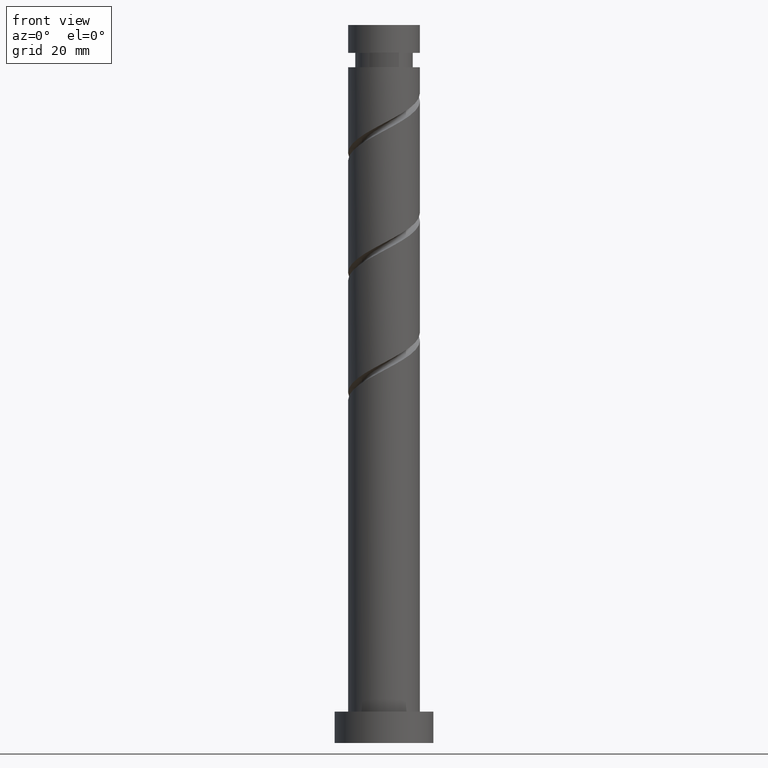
[diagram: clean part render]
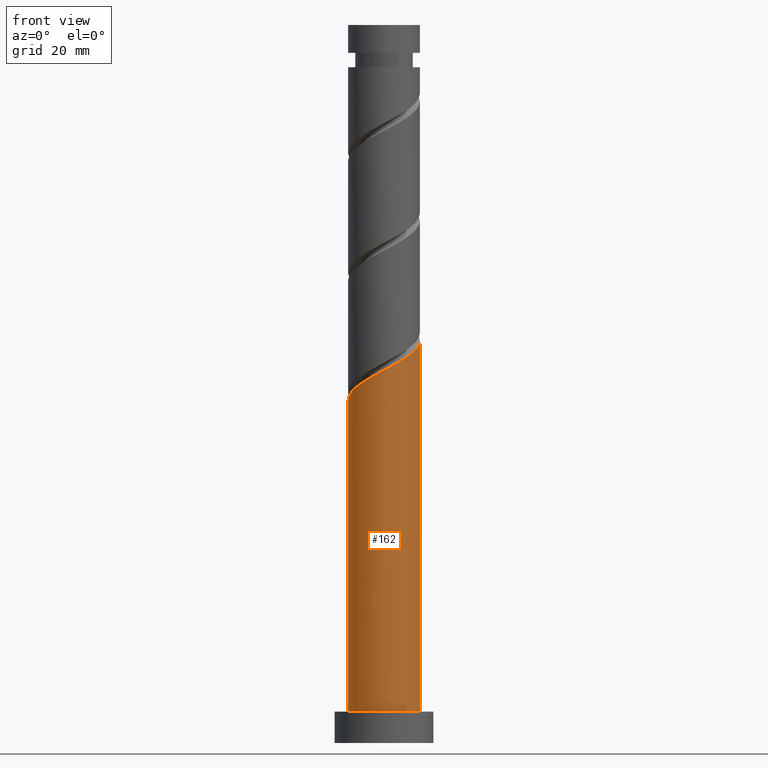
[diagram: same view with one face highlighted and labeled with its STEP entity id]
A machine part, front view. The second image highlights one B-rep face of the part: STEP entity #162.
In plain terms, the highlighted cylindrical surface (edge-blend (fillet) strip) has radius 8 mm, axis along (-0, -0, -1).
Its self-contained STEP definition (entity closure, byte-faithful):
#92 = CARTESIAN_POINT ( 'NONE',  ( -7.146654988808340825, -3.774697753686220736, 78.46827507435672544 ) ) ;
#116 = CARTESIAN_POINT ( 'NONE',  ( 8.000000000000000000, 9.797174393178825657E-16, 7.000000000000000000 ) ) ;
#120 = DIRECTION ( 'NONE',  ( 0.000000000000000000, 0.000000000000000000, 1.000000000000000000 ) ) ;
#127 = LINE ( 'NONE', #1279, #1455 ) ;
#153 = DIRECTION ( 'NONE',  ( -0.000000000000000000, -0.000000000000000000, -1.000000000000000000 ) ) ;
#162 = ADVANCED_FACE ( 'NONE', ( #174 ), #305, .T. ) ;
#174 = FACE_OUTER_BOUND ( 'NONE', #470, .T. ) ;
#208 = CARTESIAN_POINT ( 'NONE',  ( -7.533637742433276330, -2.691524171503020924, 77.86221446829610215 ) ) ;
#213 = ORIENTED_EDGE ( 'NONE', *, *, #1110, .F. ) ;
#219 = CARTESIAN_POINT ( 'NONE',  ( -3.971393078059877180, -7.039251215880920398, 80.89251749859914753 ) ) ;
#228 = CARTESIAN_POINT ( 'NONE',  ( 7.532789951889100166, -2.929180124448060418, 88.16524477132642801 ) ) ;
#279 = VERTEX_POINT ( 'NONE', #116 ) ;
#280 = VERTEX_POINT ( 'NONE', #1018 ) ;
#305 = CYLINDRICAL_SURFACE ( 'NONE', #379, 8.000000000000000000 ) ;
#336 = CARTESIAN_POINT ( 'NONE',  ( -7.986762466259771820, -0.4600275073779067081, 76.65009325617486979 ) ) ;
#362 = CARTESIAN_POINT ( 'NONE',  ( 6.967601788265361584, -3.930970022801182573, 87.55918416526579051 ) ) ;
#379 = AXIS2_PLACEMENT_3D ( 'NONE', #1351, #1223, #582 ) ;
#455 = CIRCLE ( 'NONE', #648, 8.000000000000000000 ) ;
#464 = CARTESIAN_POINT ( 'NONE',  ( -7.920620496058218052, -1.608350589319821777, 77.25615386223552150 ) ) ;
#470 = EDGE_LOOP ( 'NONE', ( #1131, #213, #1143, #1660 ) ) ;
#482 = CARTESIAN_POINT ( 'NONE',  ( 3.736276773218410341, -7.073912345647833000, 85.13494174102336842 ) ) ;
#491 = CARTESIAN_POINT ( 'NONE',  ( 8.000000000000012434, 4.935750832153824202E-15, 89.74003271626796163 ) ) ;
#582 = DIRECTION ( 'NONE',  ( -1.000000000000000000, 0.000000000000000000, 0.000000000000000000 ) ) ;
#600 = CARTESIAN_POINT ( 'NONE',  ( -8.000000000000014211, -0.2302042121905828742, 76.52879738765281559 ) ) ;
#610 = CARTESIAN_POINT ( 'NONE',  ( 4.753351822145639005, -6.536716845301444145, 85.74100234708397750 ) ) ;
#648 = AXIS2_PLACEMENT_3D ( 'NONE', #1286, #120, #791 ) ;
#727 = CARTESIAN_POINT ( 'NONE',  ( 6.402413624641629220, -4.932759921154301175, 86.95312355920519565 ) ) ;
#738 = CARTESIAN_POINT ( 'NONE',  ( 1.591979899370593365, -7.840000000000012292, 83.92282052890216448 ) ) ;
#747 = CARTESIAN_POINT ( 'NONE',  ( 8.000000000000014211, -0.9162314190809843772, 89.25407276329661954 ) ) ;
#781 = DIRECTION ( 'NONE',  ( -0.000000000000000000, -0.000000000000000000, -1.000000000000000000 ) ) ;
#791 = DIRECTION ( 'NONE',  ( 1.000000000000000000, 0.000000000000000000, 0.000000000000000000 ) ) ;
#798 = CARTESIAN_POINT ( 'NONE',  ( -8.000000000000000000, 0.000000000000000000, 160.0000000000000000 ) ) ;
#852 = CARTESIAN_POINT ( 'NONE',  ( -6.470182492983659550, -4.704969554363554352, 79.07433568041734873 ) ) ;
#874 = VERTEX_POINT ( 'NONE', #1075 ) ;
#1018 = CARTESIAN_POINT ( 'NONE',  ( -8.000000000000000000, 0.000000000000000000, 7.000000000000000000 ) ) ;
#1075 = CARTESIAN_POINT ( 'NONE',  ( -8.000000000000012434, -5.324628170444731616E-15, 76.40669938293459040 ) ) ;
#1110 = EDGE_CURVE ( 'NONE', #874, #1144, #1116, .T. ) ;
#1116 =( BOUNDED_CURVE ( )  B_SPLINE_CURVE ( 2, ( #1498, #600, #336, #464, #208, #92, #852, #1404, #1613, #219, #1523, #1516, #1386, #1620, #738, #1255, #482, #610, #1126, #727, #362, #228, #1147, #747, #491 ),
 .UNSPECIFIED., .F., .T. ) 
 B_SPLINE_CURVE_WITH_KNOTS ( ( 3, 2, 2, 2, 2, 2, 2, 2, 2, 2, 2, 2, 3 ),
 ( 0.05452521624175133558, 0.05681818181818176772, 0.06818181818181823228, 0.07954545454545458583, 0.09090909090909093937, 0.1022727272727272929, 0.1136363636363636465, 0.1250000000000000000, 0.1363636363636363535, 0.1477272727272727071, 0.1590909090909090606, 0.1704545454545454142, 0.1795252162417513009 ),
 .UNSPECIFIED. ) 
 CURVE ( )  GEOMETRIC_REPRESENTATION_ITEM ( )  RATIONAL_B_SPLINE_CURVE ( ( 0.9061101570135590144, 0.9072237824201411227, 0.9090909090909186085, 0.8998376744372208469, 0.9090909090909186085, 0.8998376744372208469, 0.9090909090909186085, 0.8998376744372208469, 0.9090909090909186085, 0.8998376744372208469, 0.9090909090909186085, 0.8998376744372208469, 0.9090909090909186085, 0.8998376744372208469, 0.9090909090909186085, 0.8998376744372208469, 0.9090909090909186085, 0.8998376744372208469, 0.9090909090909186085, 0.8998376744372208469, 0.9090909090909186085, 0.8998376744372208469, 0.9090909090909186085, 0.9017048011079983327, 0.9061101570135589034 ) ) 
 REPRESENTATION_ITEM ( '' )  );
#1126 = CARTESIAN_POINT ( 'NONE',  ( 5.577882723393632780, -5.734738383227871772, 86.34706295314458657 ) ) ;
#1131 = ORIENTED_EDGE ( 'NONE', *, *, #1339, .F. ) ;
#1143 = ORIENTED_EDGE ( 'NONE', *, *, #1288, .T. ) ;
#1144 = VERTEX_POINT ( 'NONE', #1638 ) ;
#1147 = CARTESIAN_POINT ( 'NONE',  ( 7.792847194175212877, -1.808737849506034889, 88.77130537738699445 ) ) ;
#1155 = LINE ( 'NONE', #798, #1373 ) ;
#1223 = DIRECTION ( 'NONE',  ( -0.000000000000000000, -0.000000000000000000, -1.000000000000000000 ) ) ;
#1255 = CARTESIAN_POINT ( 'NONE',  ( 2.719201724291186117, -7.611107845994222743, 84.52888113496275935 ) ) ;
#1279 = CARTESIAN_POINT ( 'NONE',  ( 8.000000000000000000, 9.797174393178825657E-16, 160.0000000000000000 ) ) ;
#1286 = CARTESIAN_POINT ( 'NONE',  ( 0.000000000000000000, 0.000000000000000000, 7.000000000000000000 ) ) ;
#1288 = EDGE_CURVE ( 'NONE', #874, #280, #1155, .T. ) ;
#1339 = EDGE_CURVE ( 'NONE', #1144, #279, #127, .T. ) ;
#1351 = CARTESIAN_POINT ( 'NONE',  ( 0.000000000000000000, 0.000000000000000000, 160.0000000000000000 ) ) ;
#1373 = VECTOR ( 'NONE', #781, 1000.000000000000000 ) ;
#1386 = CARTESIAN_POINT ( 'NONE',  ( -0.6812897180552121013, -7.970937480627512173, 82.71069931678094633 ) ) ;
#1389 = EDGE_CURVE ( 'NONE', #280, #279, #455, .T. ) ;
#1404 = CARTESIAN_POINT ( 'NONE',  ( -5.793709997158975611, -5.635241355040887967, 79.68039628647794359 ) ) ;
#1455 = VECTOR ( 'NONE', #153, 1000.000000000000000 ) ;
#1498 = CARTESIAN_POINT ( 'NONE',  ( -8.000000000000012434, -5.324628170444731616E-15, 76.40669938293457619 ) ) ;
#1516 = CARTESIAN_POINT ( 'NONE',  ( -1.827337510560426148, -7.872982807249216286, 82.10463871072035147 ) ) ;
#1523 = CARTESIAN_POINT ( 'NONE',  ( -2.899365294310152219, -7.456117011565067898, 81.49857810465972818 ) ) ;
#1613 = CARTESIAN_POINT ( 'NONE',  ( -4.882551537609425729, -6.337246285460905071, 80.28645689253851003 ) ) ;
#1620 = CARTESIAN_POINT ( 'NONE',  ( 0.4647580744500016126, -8.068892154005805395, 83.31675992284155541 ) ) ;
#1638 = CARTESIAN_POINT ( 'NONE',  ( 8.000000000000012434, 4.935750832153824202E-15, 89.74003271626796163 ) ) ;
#1660 = ORIENTED_EDGE ( 'NONE', *, *, #1389, .T. ) ;